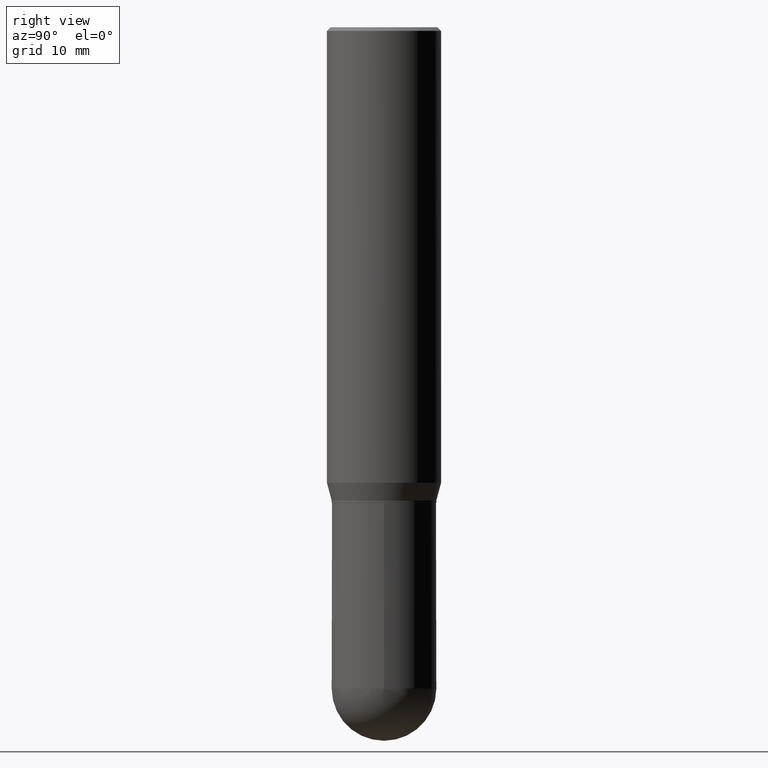
[diagram: clean part render]
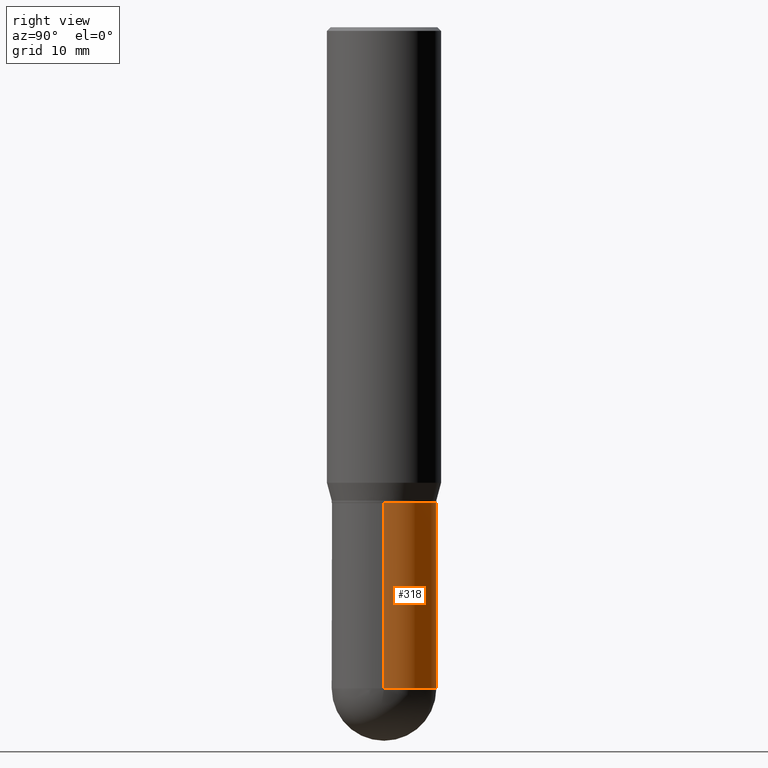
[diagram: same view with one face highlighted and labeled with its STEP entity id]
A machine part, right view. The second image highlights one B-rep face of the part: STEP entity #318.
In plain terms, the highlighted cylindrical surface (partial cylindrical patch) has radius 5.5004 mm, axis along (-0, 0, 1).
Its self-contained STEP definition (entity closure, byte-faithful):
#4 = DIRECTION ( 'NONE',  ( -2.445468806185136597E-29, 3.491481338843145583E-15, 1.000000000000000000 ) ) ;
#28 = DIRECTION ( 'NONE',  ( 1.000000000000000000, -6.982962677686266711E-15, 4.876176775795935793E-29 ) ) ;
#31 = VERTEX_POINT ( 'NONE', #449 ) ;
#32 = VECTOR ( 'NONE', #238, 39.37007874015748143 ) ;
#86 = EDGE_CURVE ( 'NONE', #460, #189, #490, .T. ) ;
#103 = DIRECTION ( 'NONE',  ( -2.445468806185136597E-29, 3.491481338843145583E-15, 1.000000000000000000 ) ) ;
#111 = DIRECTION ( 'NONE',  ( -2.445468806185136877E-29, 3.491481338843145188E-15, 1.000000000000000000 ) ) ;
#120 = CARTESIAN_POINT ( 'NONE',  ( -0.2165500000000000480, -6.674593120172645055E-15, -2.736249999999999183 ) ) ;
#121 = ORIENTED_EDGE ( 'NONE', *, *, #86, .T. ) ;
#135 = ORIENTED_EDGE ( 'NONE', *, *, #302, .T. ) ;
#143 = AXIS2_PLACEMENT_3D ( 'NONE', #319, #275, #317 ) ;
#144 = ORIENTED_EDGE ( 'NONE', *, *, #429, .F. ) ;
#146 = LINE ( 'NONE', #453, #151 ) ;
#151 = VECTOR ( 'NONE', #111, 39.37007874015748143 ) ;
#172 = EDGE_CURVE ( 'NONE', #31, #337, #441, .T. ) ;
#189 = VERTEX_POINT ( 'NONE', #370 ) ;
#221 = FACE_OUTER_BOUND ( 'NONE', #398, .T. ) ;
#238 = DIRECTION ( 'NONE',  ( -2.445468806185136877E-29, 3.491481338843145188E-15, 1.000000000000000000 ) ) ;
#259 = AXIS2_PLACEMENT_3D ( 'NONE', #455, #103, #301 ) ;
#265 = CARTESIAN_POINT ( 'NONE',  ( 1.512160567853028073E-15, 0.2165499999999904723, -2.736249999999999627 ) ) ;
#275 = DIRECTION ( 'NONE',  ( -2.445468806185136597E-29, 3.491481338843145583E-15, 1.000000000000000000 ) ) ;
#299 = ORIENTED_EDGE ( 'NONE', *, *, #172, .T. ) ;
#301 = DIRECTION ( 'NONE',  ( 1.000000000000000000, -6.982962677686263555E-15, 0.000000000000000000 ) ) ;
#302 = EDGE_CURVE ( 'NONE', #337, #460, #414, .T. ) ;
#317 = DIRECTION ( 'NONE',  ( 1.000000000000000000, -6.982962677686264344E-15, 0.000000000000000000 ) ) ;
#318 = ADVANCED_FACE ( 'NONE', ( #221 ), #345, .T. ) ;
#319 = CARTESIAN_POINT ( 'NONE',  ( 4.813905344975440714E-29, -6.872981015512730918E-15, -1.968499999999999694 ) ) ;
#334 = EDGE_CURVE ( 'NONE', #31, #380, #146, .T. ) ;
#337 = VERTEX_POINT ( 'NONE', #265 ) ;
#345 = CYLINDRICAL_SURFACE ( 'NONE', #419, 0.2165500000000000480 ) ;
#350 = CARTESIAN_POINT ( 'NONE',  ( -0.2165500000000000480, 1.538680294288497294E-15, -1.065195393794700063E-29 ) ) ;
#351 = DIRECTION ( 'NONE',  ( -2.445468806185136597E-29, 3.491481338843145583E-15, 1.000000000000000000 ) ) ;
#370 = CARTESIAN_POINT ( 'NONE',  ( -0.2165500000000000203, -6.674593120172645055E-15, -1.968499999999999694 ) ) ;
#380 = VERTEX_POINT ( 'NONE', #397 ) ;
#390 = AXIS2_PLACEMENT_3D ( 'NONE', #438, #4, #444 ) ;
#391 = CIRCLE ( 'NONE', #143, 0.2165500000000000203 ) ;
#397 = CARTESIAN_POINT ( 'NONE',  ( 0.2165500000000000203, -8.385141583365692530E-15, -1.968499999999999694 ) ) ;
#398 = EDGE_LOOP ( 'NONE', ( #135, #121, #144, #431, #299 ) ) ;
#414 = CIRCLE ( 'NONE', #259, 0.2165500000000000480 ) ;
#419 = AXIS2_PLACEMENT_3D ( 'NONE', #500, #351, #28 ) ;
#429 = EDGE_CURVE ( 'NONE', #380, #189, #391, .T. ) ;
#431 = ORIENTED_EDGE ( 'NONE', *, *, #334, .F. ) ;
#438 = CARTESIAN_POINT ( 'NONE',  ( 6.691414020924076964E-29, -9.553565813409554172E-15, -2.736249999999999183 ) ) ;
#441 = CIRCLE ( 'NONE', #390, 0.2165500000000000480 ) ;
#444 = DIRECTION ( 'NONE',  ( 1.000000000000000000, -6.982962677686263555E-15, 0.000000000000000000 ) ) ;
#449 = CARTESIAN_POINT ( 'NONE',  ( 0.2165500000000000480, -9.725433982314102974E-15, -2.736249999999999183 ) ) ;
#453 = CARTESIAN_POINT ( 'NONE',  ( 0.2165500000000000480, -1.512160567852961414E-15, 1.055936080798610176E-29 ) ) ;
#455 = CARTESIAN_POINT ( 'NONE',  ( 6.691414020924076964E-29, -9.553565813409554172E-15, -2.736249999999999183 ) ) ;
#460 = VERTEX_POINT ( 'NONE', #120 ) ;
#490 = LINE ( 'NONE', #350, #32 ) ;
#500 = CARTESIAN_POINT ( 'NONE',  ( 0.000000000000000000, 0.000000000000000000, 0.000000000000000000 ) ) ;